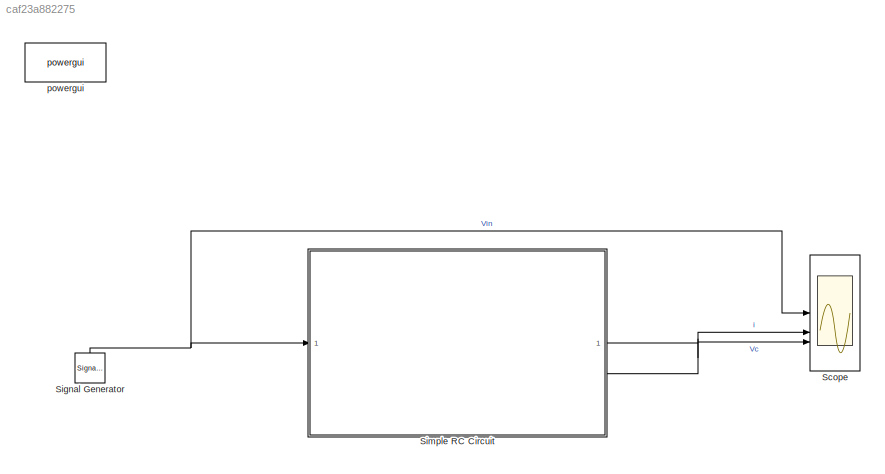
MODEL slx_caf23a882275
KIND model
CONFIG AbsTol = auto
CONFIG EnableMultiTasking = off
CONFIG FixedStep = auto
CONFIG MaxStep = 1e-6
CONFIG MinStep = auto
CONFIG RelTol = 1e-3
CONFIG SampleTimeConstraint = Unconstrained
CONFIG SolverName = VariableStepAuto
CONFIG StartTime = 0.0
CONFIG StopTime = 1
BLOCK [Scope] Scope
  Floating = off
  NumInputPorts = 3
  ScopeSpecificationString = Simulink.scopes.TimeScopeBlockCfg('CurrentConfiguration', extmgr.ConfigurationSet(extmgr.Configuration('Core','General UI',true),extmgr.Configuration('Core','Source UI',true),extmgr.Configuration('Sources','WiredSimulink',true),extmgr.Configuration('Visuals','Time Domain',true,'SerializedDisplays',{struct('MinYLimReal','-6.25','MaxYLimReal','6.25','YLabelReal','','MinYLimMag','0.00000','MaxYLimMag...<+3081ch>
BLOCK [SignalGenerator] Signal Generator
  Amplitude = 5
  Frequency = 2*pi
  NameLocation = right
  Units = rad/sec
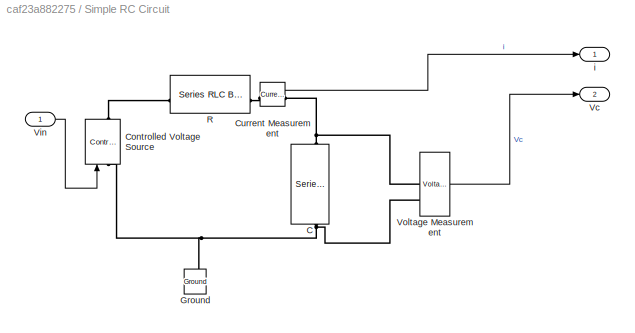
BLOCK [SubSystem] Simple RC Circuit
BLOCK [Reference] Simple RC Circuit/C  REF=spsSeriesRLCBranchLib/Series RLC Branch
  LibrarySourceBlock = sps_lib/Passives/Series RLC Branch
  NameLocation = left
  SourceBlock = spsSeriesRLCBranchLib/Series RLC Branch
  SourceType = Series RLC Branch
BLOCK [Reference] Simple RC Circuit/Controlled Voltage Source  REF=spsControlledVoltageSourceLib/Controlled Voltage Source
  LibrarySourceBlock = sps_lib/Sources/Controlled Voltage Source
  SourceBlock = spsControlledVoltageSourceLib/Controlled Voltage Source
  SourceType = Controlled Voltage Source
BLOCK [Reference] Simple RC Circuit/Current Measurement  REF=spsCurrentMeasurementLib/Current Measurement
  LibrarySourceBlock = sps_lib/Sensors and Measurements/Current Measurement
  SourceBlock = spsCurrentMeasurementLib/Current Measurement
  SourceType = Current Measurement
  UserDataPersistent = on
BLOCK [Reference] Simple RC Circuit/Ground  REF=spsGroundLib/Ground
  LibrarySourceBlock = sps_lib/Utilities/Ground
  NameLocation = right
  SourceBlock = spsGroundLib/Ground
  SourceType = Ground
BLOCK [Reference] Simple RC Circuit/R  REF=spsSeriesRLCBranchLib/Series RLC Branch
  LibrarySourceBlock = sps_lib/Passives/Series RLC Branch
  SourceBlock = spsSeriesRLCBranchLib/Series RLC Branch
  SourceType = Series RLC Branch
BLOCK [Outport] Simple RC Circuit/Vc
  Port = 2
BLOCK [Inport] Simple RC Circuit/Vin
BLOCK [Reference] Simple RC Circuit/Voltage Measurement  REF=spsVoltageMeasurementLib/Voltage Measurement
  LibrarySourceBlock = sps_lib/Sensors and Measurements/Voltage Measurement
  SourceBlock = spsVoltageMeasurementLib/Voltage Measurement
  SourceType = Voltage Measurement
  UserDataPersistent = on
BLOCK [Outport] Simple RC Circuit/i
BLOCK [Reference] powergui  REF=sps_lib/powergui
  LibrarySourceBlock = sps_lib/powergui
  Priority = 1
  SourceBlock = sps_lib/powergui
  SourceType = PSB option menu block
NET Signal Generator:1 -> Scope:1, Simple RC Circuit:1
LINE Simple RC Circuit/Current Measurement:1 -> Simple RC Circuit/i:1
LINE Simple RC Circuit/Vin:1 -> Simple RC Circuit/Controlled Voltage Source:1
LINE Simple RC Circuit/Voltage Measurement:1 -> Simple RC Circuit/Vc:1
LINE Simple RC Circuit:1 -> Scope:2
LINE Simple RC Circuit:2 -> Scope:3
PNET net1: Simple RC Circuit/C:LConn1 -- Simple RC Circuit/Current Measurement:RConn1 -- Simple RC Circuit/Voltage Measurement:LConn1
PNET net2: Simple RC Circuit/C:RConn1 -- Simple RC Circuit/Controlled Voltage Source:LConn1 -- Simple RC Circuit/Ground:LConn1 -- Simple RC Circuit/Voltage Measurement:LConn2
PLINE Simple RC Circuit/Controlled Voltage Source:RConn1 -- Simple RC Circuit/R:LConn1
PLINE Simple RC Circuit/Current Measurement:LConn1 -- Simple RC Circuit/R:RConn1
note: NET lines group one-source signal fan-out (src -> all destinations, sorted); 1:1 wires keep LINE; PNET lines group multi-terminal physical nets as a canonical sorted terminal list (undirected conserving connections); 2-terminal nets keep the pairwise PLINE form
